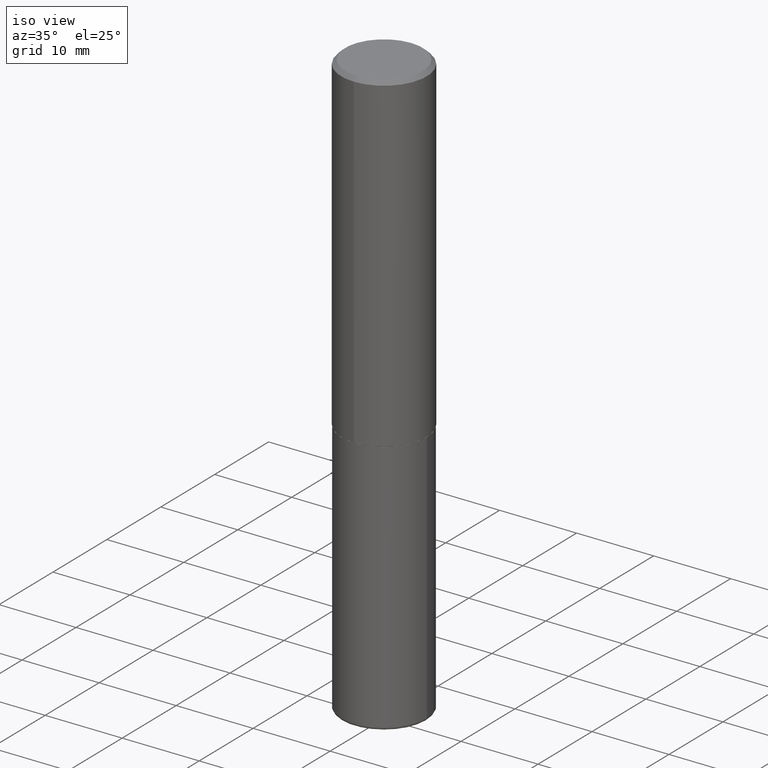
[diagram: clean part render]
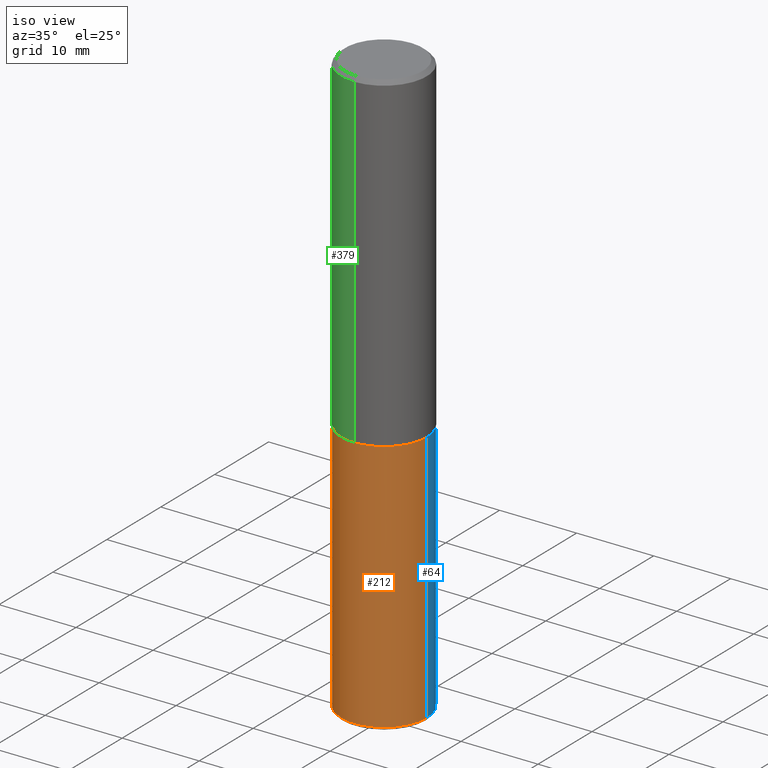
[diagram: same view with three faces highlighted in distinct colors, each labeled with its STEP entity id]
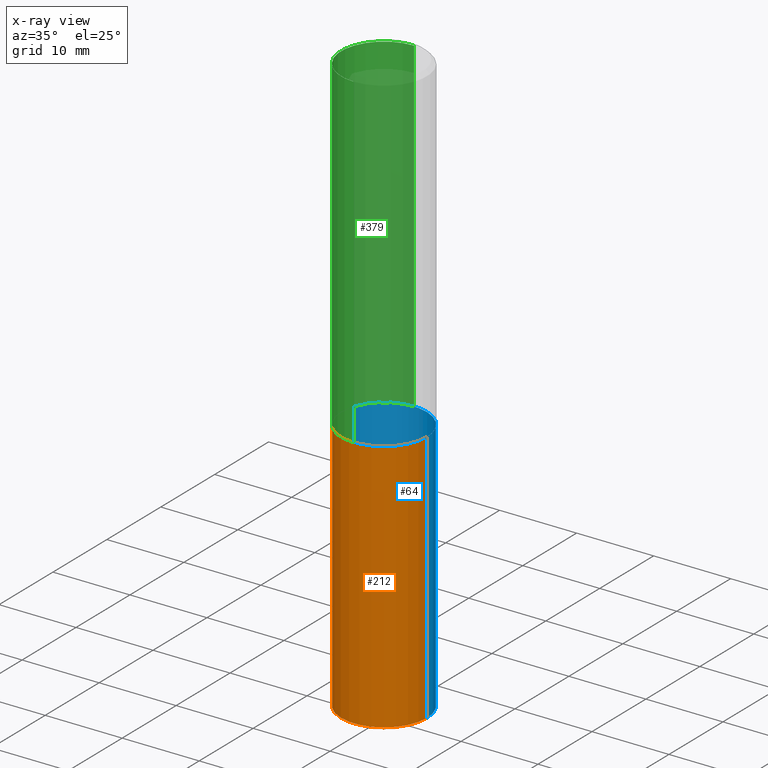
[diagram: x-ray of the same camera — body ghosted, the three highlighted faces saturated]
A machine part, iso view with three faces highlighted in distinct colors.
The next image is the same camera in x-ray (body ghosted, the three faces saturated) — at least one of them is partly hidden behind the body in this view.
Their STEP definitions:

[orange] entity #212 — the highlighted cylindrical surface (partial cylindrical patch) has radius 5.5563 mm, axis along (-0, 0, 1).
#15 = LINE ( 'NONE', #138, #65 ) ;
#16 = CYLINDRICAL_SURFACE ( 'NONE', #187, 0.2187500000000000278 ) ;
#20 = DIRECTION ( 'NONE',  ( -2.445468806185136597E-29, 3.491481338843145583E-15, 1.000000000000000000 ) ) ;
#26 = ORIENTED_EDGE ( 'NONE', *, *, #352, .T. ) ;
#36 = CARTESIAN_POINT ( 'NONE',  ( 0.2187499999999999445, -1.194959488219066130E-14, -2.984999999999999876 ) ) ;
#46 = AXIS2_PLACEMENT_3D ( 'NONE', #82, #20, #143 ) ;
#65 = VECTOR ( 'NONE', #172, 39.37007874015748143 ) ;
#67 = EDGE_LOOP ( 'NONE', ( #195, #317, #26, #354 ) ) ;
#70 = CIRCLE ( 'NONE', #206, 0.2187500000000000000 ) ;
#77 = DIRECTION ( 'NONE',  ( 1.000000000000000000, -6.982962677686266711E-15, 4.876176775795935232E-29 ) ) ;
#79 = DIRECTION ( 'NONE',  ( -2.445468806185136597E-29, 3.491481338843145583E-15, 1.000000000000000000 ) ) ;
#82 = CARTESIAN_POINT ( 'NONE',  ( 7.299724386462632472E-29, -1.042207179644678967E-14, -2.984999999999999876 ) ) ;
#113 = CARTESIAN_POINT ( 'NONE',  ( 0.2187500000000000000, -7.419397845041678890E-15, -1.687500000000000222 ) ) ;
#124 = EDGE_CURVE ( 'NONE', #395, #396, #70, .T. ) ;
#138 = CARTESIAN_POINT ( 'NONE',  ( 0.2187500000000000278, -1.527523085743871040E-15, 1.066663669705361025E-29 ) ) ;
#143 = DIRECTION ( 'NONE',  ( 1.000000000000000000, -6.982962677686271444E-15, 0.000000000000000000 ) ) ;
#167 = CARTESIAN_POINT ( 'NONE',  ( -0.2187499999999999445, -8.867759561971568934E-15, -2.984999999999999876 ) ) ;
#172 = DIRECTION ( 'NONE',  ( -2.445468806185136877E-29, 3.491481338843145188E-15, 1.000000000000000000 ) ) ;
#187 = AXIS2_PLACEMENT_3D ( 'NONE', #283, #79, #77 ) ;
#191 = VECTOR ( 'NONE', #305, 39.37007874015748143 ) ;
#195 = ORIENTED_EDGE ( 'NONE', *, *, #361, .F. ) ;
#206 = AXIS2_PLACEMENT_3D ( 'NONE', #339, #210, #302 ) ;
#210 = DIRECTION ( 'NONE',  ( -2.445468806185136597E-29, 3.491481338843145583E-15, 1.000000000000000000 ) ) ;
#212 = ADVANCED_FACE ( 'NONE', ( #367 ), #16, .T. ) ;
#236 = LINE ( 'NONE', #406, #191 ) ;
#283 = CARTESIAN_POINT ( 'NONE',  ( 0.000000000000000000, 0.000000000000000000, 0.000000000000000000 ) ) ;
#285 = CIRCLE ( 'NONE', #46, 0.2187500000000000278 ) ;
#302 = DIRECTION ( 'NONE',  ( 1.000000000000000000, -6.982962677686267499E-15, 0.000000000000000000 ) ) ;
#305 = DIRECTION ( 'NONE',  ( -2.445468806185136877E-29, 3.491481338843145188E-15, 1.000000000000000000 ) ) ;
#317 = ORIENTED_EDGE ( 'NONE', *, *, #336, .T. ) ;
#324 = VERTEX_POINT ( 'NONE', #36 ) ;
#336 = EDGE_CURVE ( 'NONE', #378, #324, #285, .T. ) ;
#339 = CARTESIAN_POINT ( 'NONE',  ( 4.126728610437418568E-29, -5.891874759297808836E-15, -1.687500000000000222 ) ) ;
#352 = EDGE_CURVE ( 'NONE', #324, #396, #15, .T. ) ;
#354 = ORIENTED_EDGE ( 'NONE', *, *, #124, .F. ) ;
#361 = EDGE_CURVE ( 'NONE', #378, #395, #236, .T. ) ;
#367 = FACE_OUTER_BOUND ( 'NONE', #67, .T. ) ;
#378 = VERTEX_POINT ( 'NONE', #167 ) ;
#395 = VERTEX_POINT ( 'NONE', #399 ) ;
#396 = VERTEX_POINT ( 'NONE', #113 ) ;
#399 = CARTESIAN_POINT ( 'NONE',  ( -0.2187500000000000000, -6.602661043397079307E-15, -1.687500000000000222 ) ) ;
#406 = CARTESIAN_POINT ( 'NONE',  ( -0.2187500000000000278, 1.554312234475219354E-15, -1.076017050993260762E-29 ) ) ;

[blue] entity #64 — the highlighted cylindrical surface (partial cylindrical patch) has radius 5.5563 mm, axis along (-0, 0, 1).
#15 = LINE ( 'NONE', #138, #65 ) ;
#24 = EDGE_LOOP ( 'NONE', ( #125, #384, #153, #231 ) ) ;
#36 = CARTESIAN_POINT ( 'NONE',  ( 0.2187499999999999445, -1.194959488219066130E-14, -2.984999999999999876 ) ) ;
#39 = DIRECTION ( 'NONE',  ( -2.445468806185136597E-29, 3.491481338843145583E-15, 1.000000000000000000 ) ) ;
#50 = DIRECTION ( 'NONE',  ( -2.445468806185136597E-29, 3.491481338843145583E-15, 1.000000000000000000 ) ) ;
#64 = ADVANCED_FACE ( 'NONE', ( #168 ), #136, .T. ) ;
#65 = VECTOR ( 'NONE', #172, 39.37007874015748143 ) ;
#93 = AXIS2_PLACEMENT_3D ( 'NONE', #249, #39, #225 ) ;
#113 = CARTESIAN_POINT ( 'NONE',  ( 0.2187500000000000000, -7.419397845041678890E-15, -1.687500000000000222 ) ) ;
#125 = ORIENTED_EDGE ( 'NONE', *, *, #413, .T. ) ;
#133 = CIRCLE ( 'NONE', #328, 0.2187500000000000000 ) ;
#136 = CYLINDRICAL_SURFACE ( 'NONE', #234, 0.2187500000000000278 ) ;
#138 = CARTESIAN_POINT ( 'NONE',  ( 0.2187500000000000278, -1.527523085743871040E-15, 1.066663669705361025E-29 ) ) ;
#146 = CARTESIAN_POINT ( 'NONE',  ( 4.126728610437418568E-29, -5.891874759297808836E-15, -1.687500000000000222 ) ) ;
#153 = ORIENTED_EDGE ( 'NONE', *, *, #261, .F. ) ;
#167 = CARTESIAN_POINT ( 'NONE',  ( -0.2187499999999999445, -8.867759561971568934E-15, -2.984999999999999876 ) ) ;
#168 = FACE_OUTER_BOUND ( 'NONE', #24, .T. ) ;
#172 = DIRECTION ( 'NONE',  ( -2.445468806185136877E-29, 3.491481338843145188E-15, 1.000000000000000000 ) ) ;
#190 = DIRECTION ( 'NONE',  ( -2.445468806185136597E-29, 3.491481338843145583E-15, 1.000000000000000000 ) ) ;
#191 = VECTOR ( 'NONE', #305, 39.37007874015748143 ) ;
#225 = DIRECTION ( 'NONE',  ( 1.000000000000000000, -6.982962677686271444E-15, 0.000000000000000000 ) ) ;
#231 = ORIENTED_EDGE ( 'NONE', *, *, #352, .F. ) ;
#234 = AXIS2_PLACEMENT_3D ( 'NONE', #271, #190, #263 ) ;
#236 = LINE ( 'NONE', #406, #191 ) ;
#249 = CARTESIAN_POINT ( 'NONE',  ( 7.299724386462632472E-29, -1.042207179644678967E-14, -2.984999999999999876 ) ) ;
#252 = CIRCLE ( 'NONE', #93, 0.2187500000000000278 ) ;
#261 = EDGE_CURVE ( 'NONE', #396, #395, #133, .T. ) ;
#263 = DIRECTION ( 'NONE',  ( 1.000000000000000000, -6.982962677686266711E-15, 4.876176775795935232E-29 ) ) ;
#271 = CARTESIAN_POINT ( 'NONE',  ( 0.000000000000000000, 0.000000000000000000, 0.000000000000000000 ) ) ;
#305 = DIRECTION ( 'NONE',  ( -2.445468806185136877E-29, 3.491481338843145188E-15, 1.000000000000000000 ) ) ;
#324 = VERTEX_POINT ( 'NONE', #36 ) ;
#328 = AXIS2_PLACEMENT_3D ( 'NONE', #146, #50, #404 ) ;
#352 = EDGE_CURVE ( 'NONE', #324, #396, #15, .T. ) ;
#361 = EDGE_CURVE ( 'NONE', #378, #395, #236, .T. ) ;
#378 = VERTEX_POINT ( 'NONE', #167 ) ;
#384 = ORIENTED_EDGE ( 'NONE', *, *, #361, .T. ) ;
#395 = VERTEX_POINT ( 'NONE', #399 ) ;
#396 = VERTEX_POINT ( 'NONE', #113 ) ;
#399 = CARTESIAN_POINT ( 'NONE',  ( -0.2187500000000000000, -6.602661043397079307E-15, -1.687500000000000222 ) ) ;
#404 = DIRECTION ( 'NONE',  ( 1.000000000000000000, -6.982962677686267499E-15, 0.000000000000000000 ) ) ;
#406 = CARTESIAN_POINT ( 'NONE',  ( -0.2187500000000000278, 1.554312234475219354E-15, -1.076017050993260762E-29 ) ) ;
#413 = EDGE_CURVE ( 'NONE', #324, #378, #252, .T. ) ;

[green] entity #379 — the highlighted cylindrical surface (partial cylindrical patch) has radius 5.5563 mm, axis along (-0, 0, 1).
#1 = EDGE_CURVE ( 'NONE', #226, #334, #230, .T. ) ;
#13 = CYLINDRICAL_SURFACE ( 'NONE', #88, 0.2187500000000000833 ) ;
#27 = AXIS2_PLACEMENT_3D ( 'NONE', #353, #241, #278 ) ;
#43 = ORIENTED_EDGE ( 'NONE', *, *, #1, .F. ) ;
#58 = DIRECTION ( 'NONE',  ( -2.445054220858351343E-29, 3.492075048627833097E-15, 1.000000000000000000 ) ) ;
#73 = DIRECTION ( 'NONE',  ( -2.445054220858351343E-29, 3.492075048627833097E-15, 1.000000000000000000 ) ) ;
#88 = AXIS2_PLACEMENT_3D ( 'NONE', #239, #141, #246 ) ;
#95 = EDGE_CURVE ( 'NONE', #334, #150, #229, .T. ) ;
#134 = CARTESIAN_POINT ( 'NONE',  ( 4.890108441716715262E-31, -6.984150097255683598E-17, -0.02000000000000005246 ) ) ;
#139 = AXIS2_PLACEMENT_3D ( 'NONE', #134, #277, #410 ) ;
#141 = DIRECTION ( 'NONE',  ( -2.445054220858351343E-29, 3.492075048627833097E-15, 1.000000000000000000 ) ) ;
#150 = VERTEX_POINT ( 'NONE', #175 ) ;
#169 = CARTESIAN_POINT ( 'NONE',  ( 1.527523085743870843E-15, 0.2187499999999998890, -0.02000000000000081574 ) ) ;
#175 = CARTESIAN_POINT ( 'NONE',  ( -1.500733937012521346E-15, -0.2187500000000000278, -0.01999999999999928571 ) ) ;
#216 = ORIENTED_EDGE ( 'NONE', *, *, #268, .T. ) ;
#226 = VERTEX_POINT ( 'NONE', #247 ) ;
#228 = ORIENTED_EDGE ( 'NONE', *, *, #325, .T. ) ;
#229 = CIRCLE ( 'NONE', #139, 0.2187499999999999445 ) ;
#230 = LINE ( 'NONE', #329, #333 ) ;
#239 = CARTESIAN_POINT ( 'NONE',  ( 0.000000000000000000, 0.000000000000000000, 0.000000000000000000 ) ) ;
#241 = DIRECTION ( 'NONE',  ( -2.445054220858351343E-29, 3.492075048627833097E-15, 1.000000000000000000 ) ) ;
#246 = DIRECTION ( 'NONE',  ( -6.982962677686265922E-15, -1.000000000000000000, 3.492075048627833097E-15 ) ) ;
#247 = CARTESIAN_POINT ( 'NONE',  ( 1.554312234475240653E-15, 0.2187499999999943101, -1.686500000000000998 ) ) ;
#257 = ORIENTED_EDGE ( 'NONE', *, *, #95, .F. ) ;
#260 = VERTEX_POINT ( 'NONE', #346 ) ;
#268 = EDGE_CURVE ( 'NONE', #260, #150, #314, .T. ) ;
#277 = DIRECTION ( 'NONE',  ( -2.445054220858351343E-29, 3.492075048627833097E-15, 1.000000000000000000 ) ) ;
#278 = DIRECTION ( 'NONE',  ( -6.982962677686265922E-15, -1.000000000000000000, 3.746534391310985612E-15 ) ) ;
#309 = CARTESIAN_POINT ( 'NONE',  ( -1.527523085743871237E-15, -0.2187500000000000833, 7.638914168873387857E-16 ) ) ;
#314 = LINE ( 'NONE', #309, #386 ) ;
#325 = EDGE_CURVE ( 'NONE', #226, #260, #365, .T. ) ;
#329 = CARTESIAN_POINT ( 'NONE',  ( 1.554312234475219551E-15, 0.2187500000000000833, -7.638914168873387857E-16 ) ) ;
#333 = VECTOR ( 'NONE', #73, 39.37007874015748143 ) ;
#334 = VERTEX_POINT ( 'NONE', #169 ) ;
#346 = CARTESIAN_POINT ( 'NONE',  ( -1.527523085743831005E-15, -0.2187500000000061062, -1.686499999999999444 ) ) ;
#353 = CARTESIAN_POINT ( 'NONE',  ( 4.123583943477609610E-29, -5.889384569510841777E-15, -1.686500000000000110 ) ) ;
#365 = CIRCLE ( 'NONE', #27, 0.2187500000000002220 ) ;
#366 = FACE_OUTER_BOUND ( 'NONE', #417, .T. ) ;
#379 = ADVANCED_FACE ( 'NONE', ( #366 ), #13, .T. ) ;
#386 = VECTOR ( 'NONE', #58, 39.37007874015748143 ) ;
#410 = DIRECTION ( 'NONE',  ( -6.982962677686265922E-15, -1.000000000000000000, 3.492862791899308860E-15 ) ) ;
#417 = EDGE_LOOP ( 'NONE', ( #43, #228, #216, #257 ) ) ;